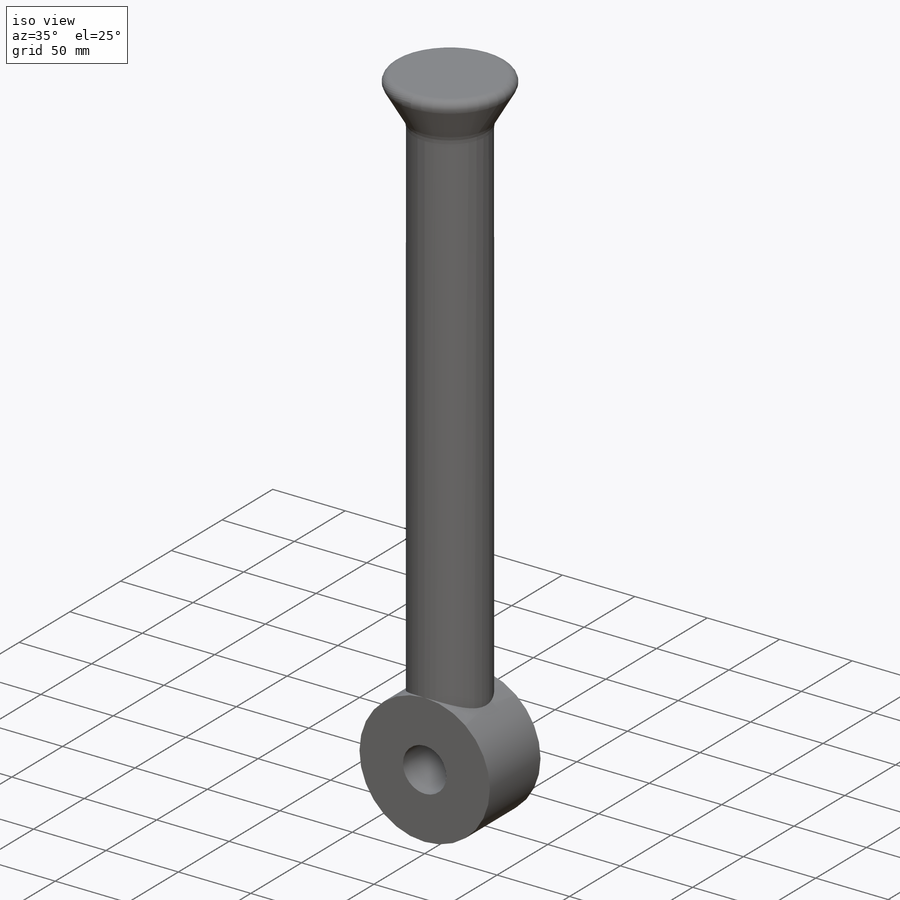
[diagram: iso view]
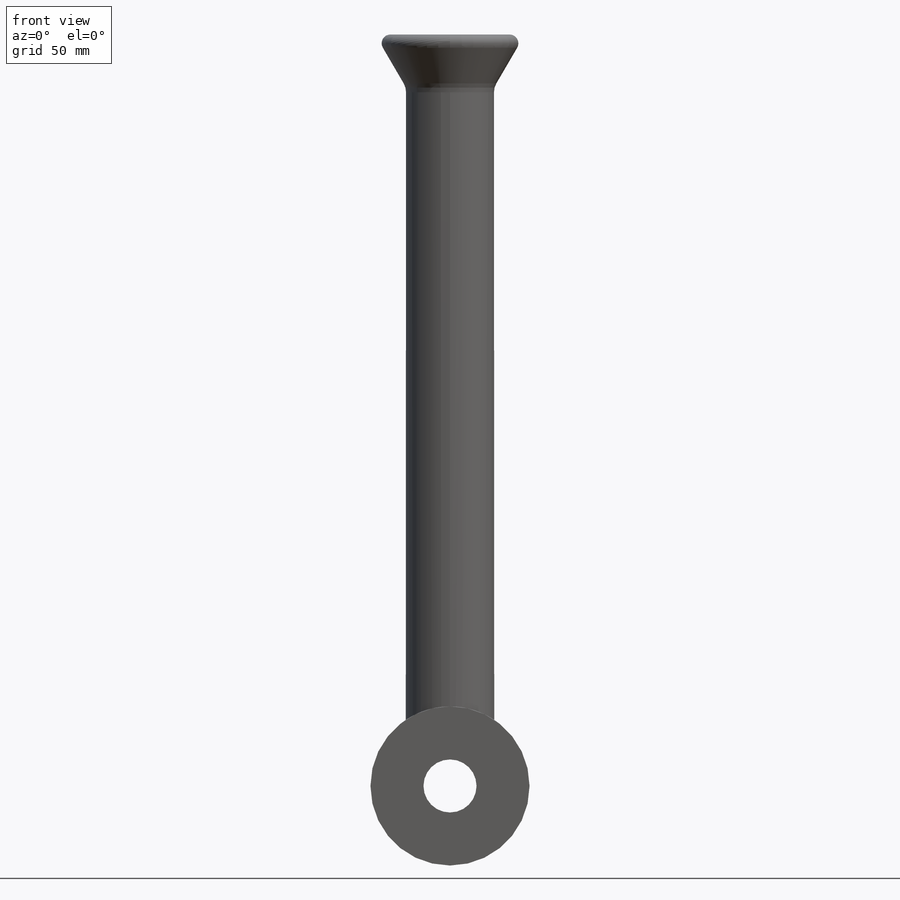
[diagram: front view]
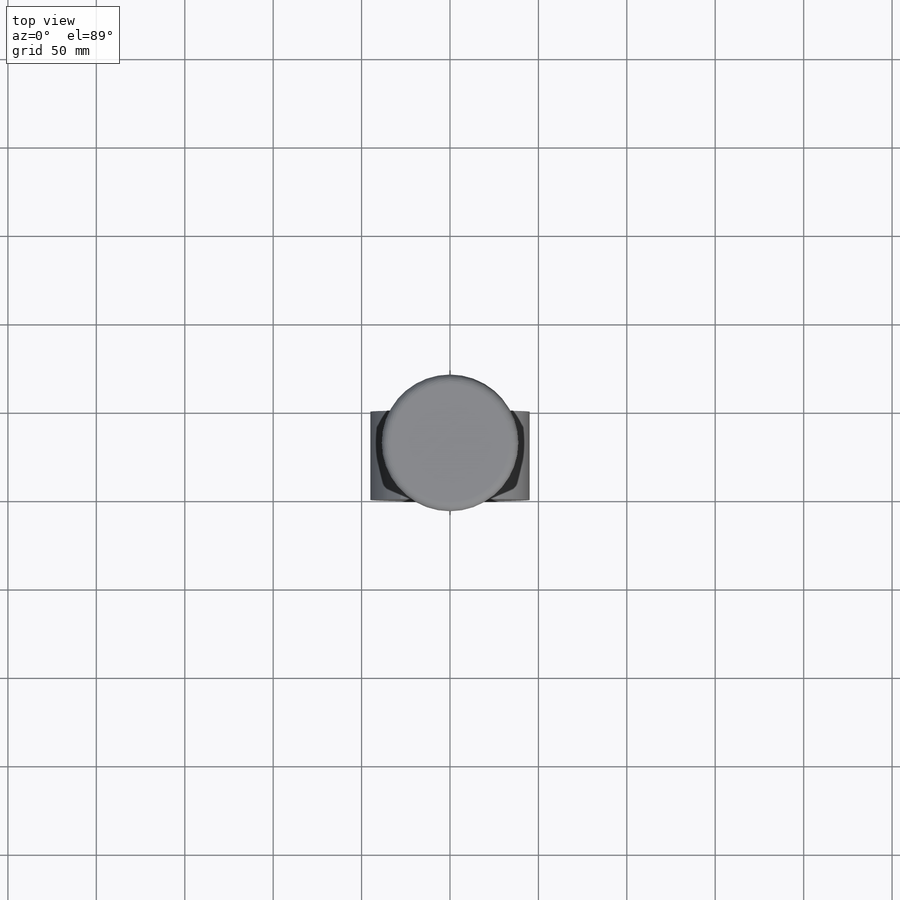
[diagram: top view]
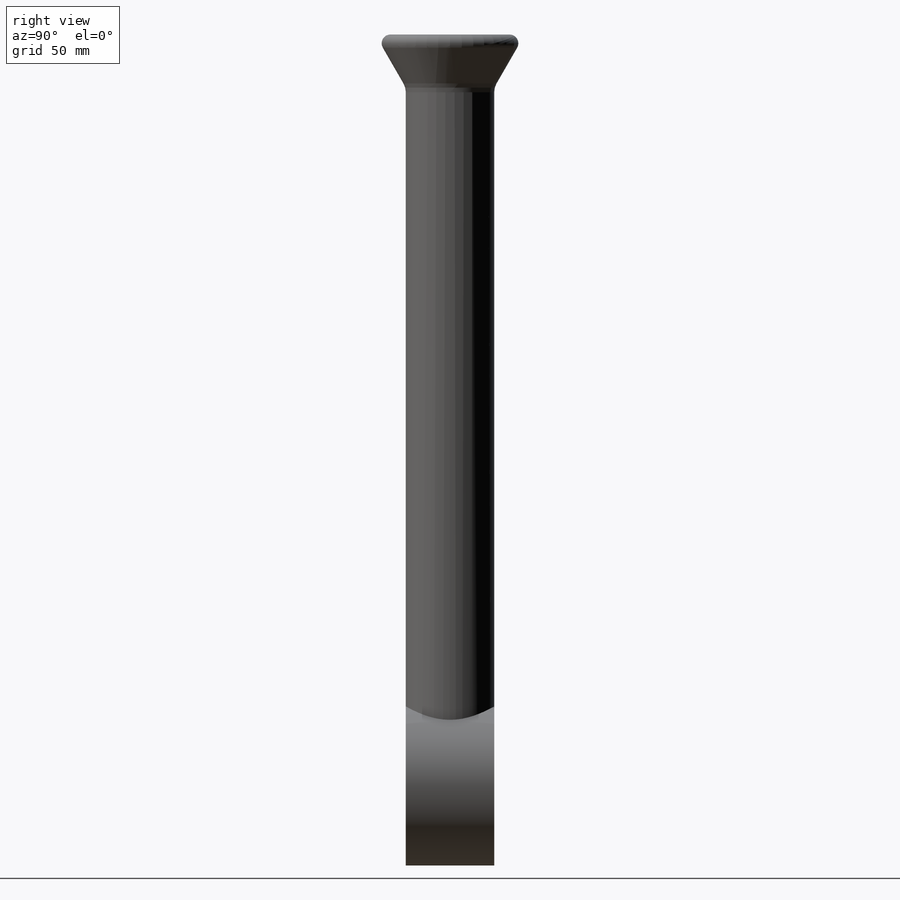
[diagram: right view]
SOLIDWORKS PART (.sldprt)
format: sldprt  version: not decoded by parser v0  size: 159,744 bytes
history: native  units: mm
features: sketch x4, extrude x3, fillet x2, material x1, cut_extrude x1 (+12 scaffold rows collapsed)
feature tree (23):
  scaffold x12  (default folders/planes/origin — collapsed)
  material  "Material <not specified>"
  sketch  "Sketch1"  dims[D1=45.0mm]
  sketch  "Sketch12"  dims[D1=25.0mm]
  extrude  "Boss-Extrude2"  Depth=50mm
  extrude  "Boss-Extrude3"  Depth=350mm
  sketch  "Sketch15"  dims[D1=50.0mm]
  extrude  "Boss-Extrude4"  Depth=30mm
  fillet  "Fillet1"  Radius=5mm
  fillet  "Fillet2"  Radius=10mm
  sketch  "Sketch16"  dims[D1=30.0mm]
  cut_extrude  "Cut-Extrude1"  [1 undecoded]
decode coverage: 9 of 10 modeling features carry decoded parameters
note: 1 parameter value undecoded
note: suppression state not decoded; provenance and decode notes live in map.json
